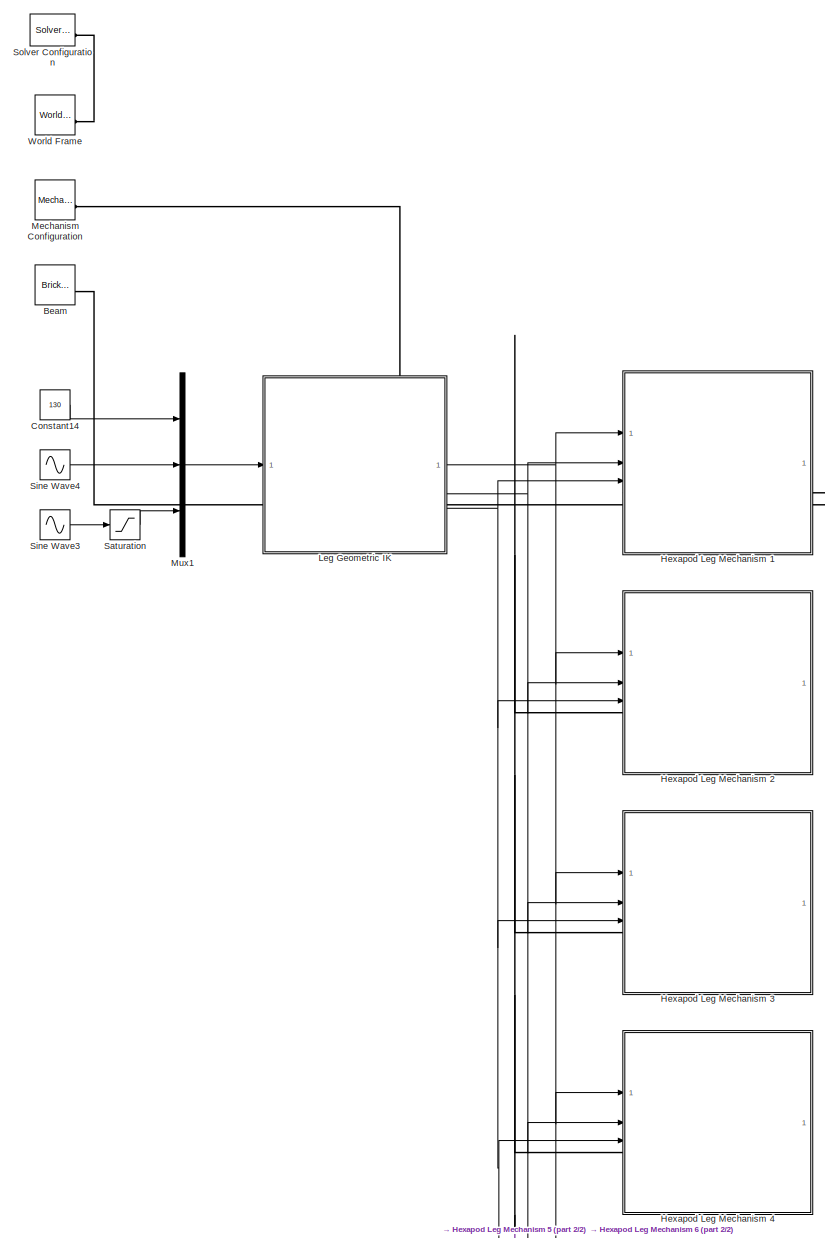
[diagram: root canvas - part 1/2, full width, middle band]
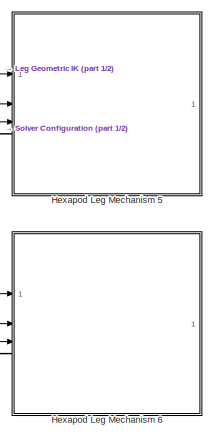
[diagram: root canvas - part 2/2, bottom right region]
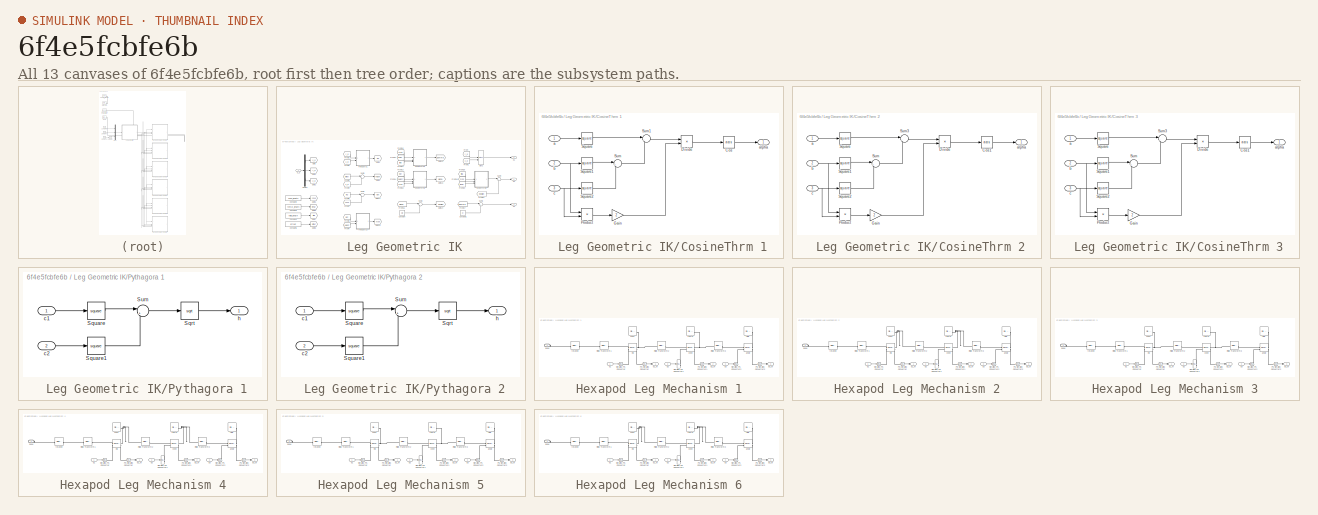
[diagram: thumbnail index - all 13 canvases of the model, root first then tree order]
MODEL slx_6f4e5fcbfe6b
KIND model
CONFIG AbsTol = auto
CONFIG EnableMultiTasking = off
CONFIG FixedStep = auto
CONFIG MaxStep = auto
CONFIG MinStep = auto
CONFIG RelTol = 1e-3
CONFIG SampleTimeConstraint = Unconstrained
CONFIG SolverName = ode23t
CONFIG StartTime = 0.0
CONFIG StopTime = 10.0
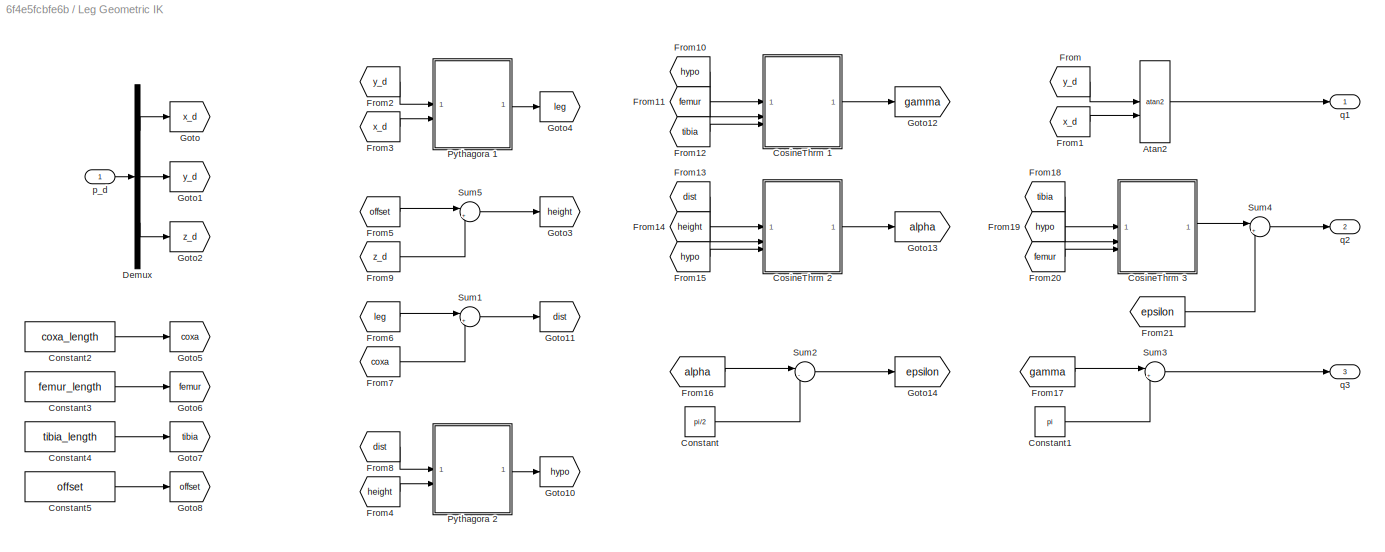
BLOCK [SubSystem]  Leg Geometric IK
BLOCK [Trigonometry]  Leg Geometric IK/Atan2
  Operator = atan2
BLOCK [Constant]  Leg Geometric IK/Constant
  Value = pi/2
BLOCK [Constant]  Leg Geometric IK/Constant1
  Value = pi
BLOCK [Constant]  Leg Geometric IK/Constant2
  Value = coxa_length
BLOCK [Constant]  Leg Geometric IK/Constant3
  Value = femur_length
BLOCK [Constant]  Leg Geometric IK/Constant4
  Value = tibia_length
BLOCK [Constant]  Leg Geometric IK/Constant5
  Value = offset
BLOCK [SubSystem]  Leg Geometric IK/CosineThrm 1
BLOCK [Trigonometry]  Leg Geometric IK/CosineThrm 1/Cos
  Operator = acos
BLOCK [Product]  Leg Geometric IK/CosineThrm 1/Divide
  Inputs = */
BLOCK [Gain]  Leg Geometric IK/CosineThrm 1/Gain
  Gain = 2
BLOCK [Product]  Leg Geometric IK/CosineThrm 1/Product
BLOCK [Math]  Leg Geometric IK/CosineThrm 1/Square
  Operator = square
BLOCK [Math]  Leg Geometric IK/CosineThrm 1/Square1
  Operator = square
BLOCK [Math]  Leg Geometric IK/CosineThrm 1/Square2
  Operator = square
BLOCK [Sum]  Leg Geometric IK/CosineThrm 1/Sum
  Inputs = |++
BLOCK [Sum]  Leg Geometric IK/CosineThrm 1/Sum1
  Inputs = |-+
BLOCK [Inport]  Leg Geometric IK/CosineThrm 1/a
  NameLocation = left
BLOCK [Outport]  Leg Geometric IK/CosineThrm 1/alpha
  NameLocation = right
BLOCK [Inport]  Leg Geometric IK/CosineThrm 1/b
  NameLocation = left
  Port = 2
BLOCK [Inport]  Leg Geometric IK/CosineThrm 1/c
  NameLocation = left
  Port = 3
BLOCK [SubSystem]  Leg Geometric IK/CosineThrm 2
BLOCK [Trigonometry]  Leg Geometric IK/CosineThrm 2/Cos1
  Operator = acos
BLOCK [Product]  Leg Geometric IK/CosineThrm 2/Divide
  Inputs = */
BLOCK [Gain]  Leg Geometric IK/CosineThrm 2/Gain
  Gain = 2
BLOCK [Product]  Leg Geometric IK/CosineThrm 2/Product
BLOCK [Math]  Leg Geometric IK/CosineThrm 2/Square
  Operator = square
BLOCK [Math]  Leg Geometric IK/CosineThrm 2/Square1
  Operator = square
BLOCK [Math]  Leg Geometric IK/CosineThrm 2/Square2
  Operator = square
BLOCK [Sum]  Leg Geometric IK/CosineThrm 2/Sum
  Inputs = |++
BLOCK [Sum]  Leg Geometric IK/CosineThrm 2/Sum3
  Inputs = |-+
BLOCK [Inport]  Leg Geometric IK/CosineThrm 2/a
  NameLocation = left
BLOCK [Outport]  Leg Geometric IK/CosineThrm 2/alpha
  NameLocation = right
BLOCK [Inport]  Leg Geometric IK/CosineThrm 2/b
  NameLocation = left
  Port = 2
BLOCK [Inport]  Leg Geometric IK/CosineThrm 2/c
  NameLocation = left
  Port = 3
BLOCK [SubSystem]  Leg Geometric IK/CosineThrm 3
BLOCK [Trigonometry]  Leg Geometric IK/CosineThrm 3/Cos1
  Operator = acos
BLOCK [Product]  Leg Geometric IK/CosineThrm 3/Divide
  Inputs = */
BLOCK [Gain]  Leg Geometric IK/CosineThrm 3/Gain
  Gain = 2
BLOCK [Product]  Leg Geometric IK/CosineThrm 3/Product
BLOCK [Math]  Leg Geometric IK/CosineThrm 3/Square
  Operator = square
BLOCK [Math]  Leg Geometric IK/CosineThrm 3/Square1
  Operator = square
BLOCK [Math]  Leg Geometric IK/CosineThrm 3/Square2
  Operator = square
BLOCK [Sum]  Leg Geometric IK/CosineThrm 3/Sum
  Inputs = |++
BLOCK [Sum]  Leg Geometric IK/CosineThrm 3/Sum3
  Inputs = |-+
BLOCK [Inport]  Leg Geometric IK/CosineThrm 3/a
  NameLocation = left
BLOCK [Outport]  Leg Geometric IK/CosineThrm 3/alpha
  NameLocation = right
BLOCK [Inport]  Leg Geometric IK/CosineThrm 3/b
  NameLocation = left
  Port = 2
BLOCK [Inport]  Leg Geometric IK/CosineThrm 3/c
  NameLocation = left
  Port = 3
BLOCK [Demux]  Leg Geometric IK/Demux
  Outputs = 3
BLOCK [From]  Leg Geometric IK/From
  GotoTag = y_d
BLOCK [From]  Leg Geometric IK/From1
  GotoTag = x_d
BLOCK [From]  Leg Geometric IK/From10
  GotoTag = hypo
BLOCK [From]  Leg Geometric IK/From11
  GotoTag = femur
BLOCK [From]  Leg Geometric IK/From12
  GotoTag = tibia
BLOCK [From]  Leg Geometric IK/From13
  GotoTag = dist
BLOCK [From]  Leg Geometric IK/From14
  GotoTag = height
BLOCK [From]  Leg Geometric IK/From15
  GotoTag = hypo
BLOCK [From]  Leg Geometric IK/From16
  GotoTag = alpha
BLOCK [From]  Leg Geometric IK/From17
  GotoTag = gamma
BLOCK [From]  Leg Geometric IK/From18
  GotoTag = tibia
BLOCK [From]  Leg Geometric IK/From19
  GotoTag = hypo
BLOCK [From]  Leg Geometric IK/From2
  GotoTag = y_d
BLOCK [From]  Leg Geometric IK/From20
  GotoTag = femur
BLOCK [From]  Leg Geometric IK/From21
  GotoTag = epsilon
BLOCK [From]  Leg Geometric IK/From3
  GotoTag = x_d
BLOCK [From]  Leg Geometric IK/From4
  GotoTag = height
BLOCK [From]  Leg Geometric IK/From5
  GotoTag = offset
BLOCK [From]  Leg Geometric IK/From6
  GotoTag = leg
BLOCK [From]  Leg Geometric IK/From7
  GotoTag = coxa
BLOCK [From]  Leg Geometric IK/From8
  GotoTag = dist
BLOCK [From]  Leg Geometric IK/From9
  GotoTag = z_d
BLOCK [Goto]  Leg Geometric IK/Goto
  GotoTag = x_d
BLOCK [Goto]  Leg Geometric IK/Goto1
  GotoTag = y_d
BLOCK [Goto]  Leg Geometric IK/Goto10
  GotoTag = hypo
BLOCK [Goto]  Leg Geometric IK/Goto11
  GotoTag = dist
BLOCK [Goto]  Leg Geometric IK/Goto12
  GotoTag = gamma
BLOCK [Goto]  Leg Geometric IK/Goto13
  GotoTag = alpha
BLOCK [Goto]  Leg Geometric IK/Goto14
  GotoTag = epsilon
BLOCK [Goto]  Leg Geometric IK/Goto2
  GotoTag = z_d
BLOCK [Goto]  Leg Geometric IK/Goto3
  GotoTag = height
BLOCK [Goto]  Leg Geometric IK/Goto4
  GotoTag = leg
BLOCK [Goto]  Leg Geometric IK/Goto5
  GotoTag = coxa
BLOCK [Goto]  Leg Geometric IK/Goto6
  GotoTag = femur
BLOCK [Goto]  Leg Geometric IK/Goto7
  GotoTag = tibia
BLOCK [Goto]  Leg Geometric IK/Goto8
  GotoTag = offset
BLOCK [SubSystem]  Leg Geometric IK/Pythagora 1
BLOCK [Sqrt]  Leg Geometric IK/Pythagora 1/Sqrt
BLOCK [Math]  Leg Geometric IK/Pythagora 1/Square
  Operator = square
BLOCK [Math]  Leg Geometric IK/Pythagora 1/Square1
  Operator = square
BLOCK [Sum]  Leg Geometric IK/Pythagora 1/Sum
  Inputs = |++
BLOCK [Inport]  Leg Geometric IK/Pythagora 1/c1
  NameLocation = left
BLOCK [Inport]  Leg Geometric IK/Pythagora 1/c2
  NameLocation = left
  Port = 2
BLOCK [Outport]  Leg Geometric IK/Pythagora 1/h
  NameLocation = right
BLOCK [SubSystem]  Leg Geometric IK/Pythagora 2
BLOCK [Sqrt]  Leg Geometric IK/Pythagora 2/Sqrt
BLOCK [Math]  Leg Geometric IK/Pythagora 2/Square
  Operator = square
BLOCK [Math]  Leg Geometric IK/Pythagora 2/Square1
  Operator = square
BLOCK [Sum]  Leg Geometric IK/Pythagora 2/Sum
  Inputs = |++
BLOCK [Inport]  Leg Geometric IK/Pythagora 2/c1
  NameLocation = left
BLOCK [Inport]  Leg Geometric IK/Pythagora 2/c2
  NameLocation = left
  Port = 2
BLOCK [Outport]  Leg Geometric IK/Pythagora 2/h
  NameLocation = right
BLOCK [Sum]  Leg Geometric IK/Sum1
  Inputs = |+-
BLOCK [Sum]  Leg Geometric IK/Sum2
  Inputs = |-+
BLOCK [Sum]  Leg Geometric IK/Sum3
  Inputs = |+-
BLOCK [Sum]  Leg Geometric IK/Sum4
  Inputs = |+-
BLOCK [Sum]  Leg Geometric IK/Sum5
  Inputs = |+-
BLOCK [Inport]  Leg Geometric IK/p_d
  NameLocation = left
BLOCK [Outport]  Leg Geometric IK/q1
  NameLocation = right
BLOCK [Outport]  Leg Geometric IK/q2
  NameLocation = right
  Port = 2
BLOCK [Outport]  Leg Geometric IK/q3
  NameLocation = right
  Port = 3
BLOCK [Reference] Beam  REF=sm_lib/Body Elements/Brick Solid
  NameLocation = top
  SourceBlock = sm_lib/Body Elements/Brick Solid
  SourceType = Brick Solid
BLOCK [Constant] Constant14
  Value = 130
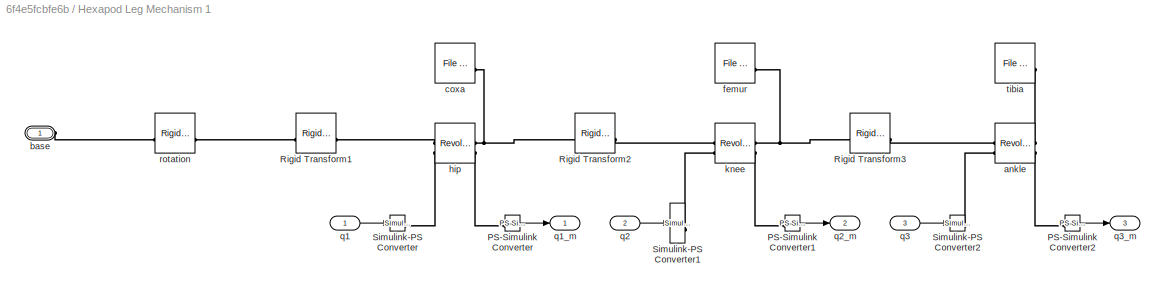
BLOCK [SubSystem] Hexapod Leg Mechanism 1
  PortSchema = {"entries":[{"content":{"sides":[{"content":{"connectorIds":["In1","In2","In3"]},"type":"ConnectorPlacement.EquallySpacedRectSide","uuid":"bc17d883-2b58-45a2-a1f1-7f74565bb8d6"},{"content":{"connectorIds":["Out1","Out2","Out3"],"side":"RIGHT"},"type":"ConnectorPlacement.EquallySpacedRectSide","uuid":"1ff441ba-9642-4046-9acb-54501b207a86"},{"content":{"connectorIds":["LConn1"],"side":"TOP"},"type":...<+274ch>  <repeated x6 — deduplicated; at blocks: Hexapod Leg Mechanism 1, Hexapod Leg Mechanism 2, Hexapod Leg Mechanism 3, Hexapod Leg Mechanism 4, Hexapod Leg Mechanism 5, Hexapod Leg Mechanism 6>
BLOCK [Reference] Hexapod Leg Mechanism 1/PS-Simulink Converter  REF=nesl_utility/PS-Simulink
Converter
  SourceBlock = nesl_utility/PS-Simulink\nConverter
  SourceType = PS-Simulink\nConverter
BLOCK [Reference] Hexapod Leg Mechanism 1/PS-Simulink Converter1  REF=nesl_utility/PS-Simulink
Converter
  SourceBlock = nesl_utility/PS-Simulink\nConverter
  SourceType = PS-Simulink\nConverter
BLOCK [Reference] Hexapod Leg Mechanism 1/PS-Simulink Converter2  REF=nesl_utility/PS-Simulink
Converter
  SourceBlock = nesl_utility/PS-Simulink\nConverter
  SourceType = PS-Simulink\nConverter
BLOCK [Reference] Hexapod Leg Mechanism 1/Rigid Transform1  REF=sm_lib/Frames and
Transforms/Rigid
Transform
  SourceBlock = sm_lib/Frames and\nTransforms/Rigid\nTransform
  SourceType = Rigid\nTransform
BLOCK [Reference] Hexapod Leg Mechanism 1/Rigid Transform2  REF=sm_lib/Frames and
Transforms/Rigid
Transform
  SourceBlock = sm_lib/Frames and\nTransforms/Rigid\nTransform
  SourceType = Rigid\nTransform
BLOCK [Reference] Hexapod Leg Mechanism 1/Rigid Transform3  REF=sm_lib/Frames and
Transforms/Rigid
Transform
  SourceBlock = sm_lib/Frames and\nTransforms/Rigid\nTransform
  SourceType = Rigid\nTransform
BLOCK [Reference] Hexapod Leg Mechanism 1/Simulink-PS Converter  REF=nesl_utility/Simulink-PS
Converter
  SourceBlock = nesl_utility/Simulink-PS\nConverter
  SourceType = Simulink-PS\nConverter
BLOCK [Reference] Hexapod Leg Mechanism 1/Simulink-PS Converter1  REF=nesl_utility/Simulink-PS
Converter
  SourceBlock = nesl_utility/Simulink-PS\nConverter
  SourceType = Simulink-PS\nConverter
BLOCK [Reference] Hexapod Leg Mechanism 1/Simulink-PS Converter2  REF=nesl_utility/Simulink-PS
Converter
  SourceBlock = nesl_utility/Simulink-PS\nConverter
  SourceType = Simulink-PS\nConverter
BLOCK [Reference] Hexapod Leg Mechanism 1/ankle  REF=sm_lib/Joints/Revolute Joint
  SourceBlock = sm_lib/Joints/Revolute Joint
  SourceType = Revolute Joint
BLOCK [PMIOPort] Hexapod Leg Mechanism 1/base
  NameLocation = left
  Side = Left
BLOCK [Reference] Hexapod Leg Mechanism 1/coxa  REF=sm_lib/Body Elements/File Solid
  NameLocation = top
  SourceBlock = sm_lib/Body Elements/File Solid
  SourceType = File Solid
BLOCK [Reference] Hexapod Leg Mechanism 1/femur  REF=sm_lib/Body Elements/File Solid
  NameLocation = top
  SourceBlock = sm_lib/Body Elements/File Solid
  SourceType = File Solid
BLOCK [Reference] Hexapod Leg Mechanism 1/hip  REF=sm_lib/Joints/Revolute Joint
  SourceBlock = sm_lib/Joints/Revolute Joint
  SourceType = Revolute Joint
BLOCK [Reference] Hexapod Leg Mechanism 1/knee  REF=sm_lib/Joints/Revolute Joint
  SourceBlock = sm_lib/Joints/Revolute Joint
  SourceType = Revolute Joint
BLOCK [Inport] Hexapod Leg Mechanism 1/q1
BLOCK [Outport] Hexapod Leg Mechanism 1/q1_m
BLOCK [Inport] Hexapod Leg Mechanism 1/q2
  Port = 2
BLOCK [Outport] Hexapod Leg Mechanism 1/q2_m
  Port = 2
BLOCK [Inport] Hexapod Leg Mechanism 1/q3
  Port = 3
BLOCK [Outport] Hexapod Leg Mechanism 1/q3_m
  Port = 3
BLOCK [Reference] Hexapod Leg Mechanism 1/rotation  REF=sm_lib/Frames and
Transforms/Rigid
Transform
  SourceBlock = sm_lib/Frames and\nTransforms/Rigid\nTransform
  SourceType = Rigid\nTransform
BLOCK [Reference] Hexapod Leg Mechanism 1/tibia  REF=sm_lib/Body Elements/File Solid
  NameLocation = top
  SourceBlock = sm_lib/Body Elements/File Solid
  SourceType = File Solid
BLOCK [SubSystem] Hexapod Leg Mechanism 2
BLOCK [Reference] Hexapod Leg Mechanism 2/PS-Simulink Converter  REF=nesl_utility/PS-Simulink
Converter
  SourceBlock = nesl_utility/PS-Simulink\nConverter
  SourceType = PS-Simulink\nConverter
BLOCK [Reference] Hexapod Leg Mechanism 2/PS-Simulink Converter1  REF=nesl_utility/PS-Simulink
Converter
  SourceBlock = nesl_utility/PS-Simulink\nConverter
  SourceType = PS-Simulink\nConverter
BLOCK [Reference] Hexapod Leg Mechanism 2/PS-Simulink Converter2  REF=nesl_utility/PS-Simulink
Converter
  SourceBlock = nesl_utility/PS-Simulink\nConverter
  SourceType = PS-Simulink\nConverter
BLOCK [Reference] Hexapod Leg Mechanism 2/Rigid Transform1  REF=sm_lib/Frames and
Transforms/Rigid
Transform
  SourceBlock = sm_lib/Frames and\nTransforms/Rigid\nTransform
  SourceType = Rigid\nTransform
BLOCK [Reference] Hexapod Leg Mechanism 2/Rigid Transform2  REF=sm_lib/Frames and
Transforms/Rigid
Transform
  SourceBlock = sm_lib/Frames and\nTransforms/Rigid\nTransform
  SourceType = Rigid\nTransform
BLOCK [Reference] Hexapod Leg Mechanism 2/Rigid Transform3  REF=sm_lib/Frames and
Transforms/Rigid
Transform
  SourceBlock = sm_lib/Frames and\nTransforms/Rigid\nTransform
  SourceType = Rigid\nTransform
BLOCK [Reference] Hexapod Leg Mechanism 2/Simulink-PS Converter  REF=nesl_utility/Simulink-PS
Converter
  SourceBlock = nesl_utility/Simulink-PS\nConverter
  SourceType = Simulink-PS\nConverter
BLOCK [Reference] Hexapod Leg Mechanism 2/Simulink-PS Converter1  REF=nesl_utility/Simulink-PS
Converter
  SourceBlock = nesl_utility/Simulink-PS\nConverter
  SourceType = Simulink-PS\nConverter
BLOCK [Reference] Hexapod Leg Mechanism 2/Simulink-PS Converter2  REF=nesl_utility/Simulink-PS
Converter
  SourceBlock = nesl_utility/Simulink-PS\nConverter
  SourceType = Simulink-PS\nConverter
BLOCK [Reference] Hexapod Leg Mechanism 2/ankle  REF=sm_lib/Joints/Revolute Joint
  SourceBlock = sm_lib/Joints/Revolute Joint
  SourceType = Revolute Joint
BLOCK [PMIOPort] Hexapod Leg Mechanism 2/base
  NameLocation = left
  Side = Left
BLOCK [Reference] Hexapod Leg Mechanism 2/coxa  REF=sm_lib/Body Elements/File Solid
  NameLocation = top
  SourceBlock = sm_lib/Body Elements/File Solid
  SourceType = File Solid
BLOCK [Reference] Hexapod Leg Mechanism 2/femur  REF=sm_lib/Body Elements/File Solid
  NameLocation = top
  SourceBlock = sm_lib/Body Elements/File Solid
  SourceType = File Solid
BLOCK [Reference] Hexapod Leg Mechanism 2/hip  REF=sm_lib/Joints/Revolute Joint
  SourceBlock = sm_lib/Joints/Revolute Joint
  SourceType = Revolute Joint
BLOCK [Reference] Hexapod Leg Mechanism 2/knee  REF=sm_lib/Joints/Revolute Joint
  SourceBlock = sm_lib/Joints/Revolute Joint
  SourceType = Revolute Joint
BLOCK [Inport] Hexapod Leg Mechanism 2/q1
BLOCK [Outport] Hexapod Leg Mechanism 2/q1_m
BLOCK [Inport] Hexapod Leg Mechanism 2/q2
  Port = 2
BLOCK [Outport] Hexapod Leg Mechanism 2/q2_m
  Port = 2
BLOCK [Inport] Hexapod Leg Mechanism 2/q3
  Port = 3
BLOCK [Outport] Hexapod Leg Mechanism 2/q3_m
  Port = 3
BLOCK [Reference] Hexapod Leg Mechanism 2/rotation  REF=sm_lib/Frames and
Transforms/Rigid
Transform
  SourceBlock = sm_lib/Frames and\nTransforms/Rigid\nTransform
  SourceType = Rigid\nTransform
BLOCK [Reference] Hexapod Leg Mechanism 2/tibia  REF=sm_lib/Body Elements/File Solid
  NameLocation = top
  SourceBlock = sm_lib/Body Elements/File Solid
  SourceType = File Solid
BLOCK [SubSystem] Hexapod Leg Mechanism 3
BLOCK [Reference] Hexapod Leg Mechanism 3/PS-Simulink Converter  REF=nesl_utility/PS-Simulink
Converter
  SourceBlock = nesl_utility/PS-Simulink\nConverter
  SourceType = PS-Simulink\nConverter
BLOCK [Reference] Hexapod Leg Mechanism 3/PS-Simulink Converter1  REF=nesl_utility/PS-Simulink
Converter
  SourceBlock = nesl_utility/PS-Simulink\nConverter
  SourceType = PS-Simulink\nConverter
BLOCK [Reference] Hexapod Leg Mechanism 3/PS-Simulink Converter2  REF=nesl_utility/PS-Simulink
Converter
  SourceBlock = nesl_utility/PS-Simulink\nConverter
  SourceType = PS-Simulink\nConverter
BLOCK [Reference] Hexapod Leg Mechanism 3/Rigid Transform1  REF=sm_lib/Frames and
Transforms/Rigid
Transform
  SourceBlock = sm_lib/Frames and\nTransforms/Rigid\nTransform
  SourceType = Rigid\nTransform
BLOCK [Reference] Hexapod Leg Mechanism 3/Rigid Transform2  REF=sm_lib/Frames and
Transforms/Rigid
Transform
  SourceBlock = sm_lib/Frames and\nTransforms/Rigid\nTransform
  SourceType = Rigid\nTransform
BLOCK [Reference] Hexapod Leg Mechanism 3/Rigid Transform3  REF=sm_lib/Frames and
Transforms/Rigid
Transform
  SourceBlock = sm_lib/Frames and\nTransforms/Rigid\nTransform
  SourceType = Rigid\nTransform
BLOCK [Reference] Hexapod Leg Mechanism 3/Simulink-PS Converter  REF=nesl_utility/Simulink-PS
Converter
  SourceBlock = nesl_utility/Simulink-PS\nConverter
  SourceType = Simulink-PS\nConverter
BLOCK [Reference] Hexapod Leg Mechanism 3/Simulink-PS Converter1  REF=nesl_utility/Simulink-PS
Converter
  SourceBlock = nesl_utility/Simulink-PS\nConverter
  SourceType = Simulink-PS\nConverter
BLOCK [Reference] Hexapod Leg Mechanism 3/Simulink-PS Converter2  REF=nesl_utility/Simulink-PS
Converter
  SourceBlock = nesl_utility/Simulink-PS\nConverter
  SourceType = Simulink-PS\nConverter
BLOCK [Reference] Hexapod Leg Mechanism 3/ankle  REF=sm_lib/Joints/Revolute Joint
  SourceBlock = sm_lib/Joints/Revolute Joint
  SourceType = Revolute Joint
BLOCK [PMIOPort] Hexapod Leg Mechanism 3/base
  NameLocation = left
  Side = Left
BLOCK [Reference] Hexapod Leg Mechanism 3/coxa  REF=sm_lib/Body Elements/File Solid
  NameLocation = top
  SourceBlock = sm_lib/Body Elements/File Solid
  SourceType = File Solid
BLOCK [Reference] Hexapod Leg Mechanism 3/femur  REF=sm_lib/Body Elements/File Solid
  NameLocation = top
  SourceBlock = sm_lib/Body Elements/File Solid
  SourceType = File Solid
BLOCK [Reference] Hexapod Leg Mechanism 3/hip  REF=sm_lib/Joints/Revolute Joint
  SourceBlock = sm_lib/Joints/Revolute Joint
  SourceType = Revolute Joint
BLOCK [Reference] Hexapod Leg Mechanism 3/knee  REF=sm_lib/Joints/Revolute Joint
  SourceBlock = sm_lib/Joints/Revolute Joint
  SourceType = Revolute Joint
BLOCK [Inport] Hexapod Leg Mechanism 3/q1
BLOCK [Outport] Hexapod Leg Mechanism 3/q1_m
BLOCK [Inport] Hexapod Leg Mechanism 3/q2
  Port = 2
BLOCK [Outport] Hexapod Leg Mechanism 3/q2_m
  Port = 2
BLOCK [Inport] Hexapod Leg Mechanism 3/q3
  Port = 3
BLOCK [Outport] Hexapod Leg Mechanism 3/q3_m
  Port = 3
BLOCK [Reference] Hexapod Leg Mechanism 3/rotation  REF=sm_lib/Frames and
Transforms/Rigid
Transform
  SourceBlock = sm_lib/Frames and\nTransforms/Rigid\nTransform
  SourceType = Rigid\nTransform
BLOCK [Reference] Hexapod Leg Mechanism 3/tibia  REF=sm_lib/Body Elements/File Solid
  NameLocation = top
  SourceBlock = sm_lib/Body Elements/File Solid
  SourceType = File Solid
BLOCK [SubSystem] Hexapod Leg Mechanism 4
BLOCK [Reference] Hexapod Leg Mechanism 4/PS-Simulink Converter  REF=nesl_utility/PS-Simulink
Converter
  SourceBlock = nesl_utility/PS-Simulink\nConverter
  SourceType = PS-Simulink\nConverter
BLOCK [Reference] Hexapod Leg Mechanism 4/PS-Simulink Converter1  REF=nesl_utility/PS-Simulink
Converter
  SourceBlock = nesl_utility/PS-Simulink\nConverter
  SourceType = PS-Simulink\nConverter
BLOCK [Reference] Hexapod Leg Mechanism 4/PS-Simulink Converter2  REF=nesl_utility/PS-Simulink
Converter
  SourceBlock = nesl_utility/PS-Simulink\nConverter
  SourceType = PS-Simulink\nConverter
BLOCK [Reference] Hexapod Leg Mechanism 4/Rigid Transform1  REF=sm_lib/Frames and
Transforms/Rigid
Transform
  SourceBlock = sm_lib/Frames and\nTransforms/Rigid\nTransform
  SourceType = Rigid\nTransform
BLOCK [Reference] Hexapod Leg Mechanism 4/Rigid Transform2  REF=sm_lib/Frames and
Transforms/Rigid
Transform
  SourceBlock = sm_lib/Frames and\nTransforms/Rigid\nTransform
  SourceType = Rigid\nTransform
BLOCK [Reference] Hexapod Leg Mechanism 4/Rigid Transform3  REF=sm_lib/Frames and
Transforms/Rigid
Transform
  SourceBlock = sm_lib/Frames and\nTransforms/Rigid\nTransform
  SourceType = Rigid\nTransform
BLOCK [Reference] Hexapod Leg Mechanism 4/Simulink-PS Converter  REF=nesl_utility/Simulink-PS
Converter
  SourceBlock = nesl_utility/Simulink-PS\nConverter
  SourceType = Simulink-PS\nConverter
BLOCK [Reference] Hexapod Leg Mechanism 4/Simulink-PS Converter1  REF=nesl_utility/Simulink-PS
Converter
  SourceBlock = nesl_utility/Simulink-PS\nConverter
  SourceType = Simulink-PS\nConverter
BLOCK [Reference] Hexapod Leg Mechanism 4/Simulink-PS Converter2  REF=nesl_utility/Simulink-PS
Converter
  SourceBlock = nesl_utility/Simulink-PS\nConverter
  SourceType = Simulink-PS\nConverter
BLOCK [Reference] Hexapod Leg Mechanism 4/ankle  REF=sm_lib/Joints/Revolute Joint
  SourceBlock = sm_lib/Joints/Revolute Joint
  SourceType = Revolute Joint
BLOCK [PMIOPort] Hexapod Leg Mechanism 4/base
  NameLocation = left
  Side = Left
BLOCK [Reference] Hexapod Leg Mechanism 4/coxa  REF=sm_lib/Body Elements/File Solid
  NameLocation = top
  SourceBlock = sm_lib/Body Elements/File Solid
  SourceType = File Solid
BLOCK [Reference] Hexapod Leg Mechanism 4/femur  REF=sm_lib/Body Elements/File Solid
  NameLocation = top
  SourceBlock = sm_lib/Body Elements/File Solid
  SourceType = File Solid
BLOCK [Reference] Hexapod Leg Mechanism 4/hip  REF=sm_lib/Joints/Revolute Joint
  SourceBlock = sm_lib/Joints/Revolute Joint
  SourceType = Revolute Joint
BLOCK [Reference] Hexapod Leg Mechanism 4/knee  REF=sm_lib/Joints/Revolute Joint
  SourceBlock = sm_lib/Joints/Revolute Joint
  SourceType = Revolute Joint
BLOCK [Inport] Hexapod Leg Mechanism 4/q1
BLOCK [Outport] Hexapod Leg Mechanism 4/q1_m
BLOCK [Inport] Hexapod Leg Mechanism 4/q2
  Port = 2
BLOCK [Outport] Hexapod Leg Mechanism 4/q2_m
  Port = 2
BLOCK [Inport] Hexapod Leg Mechanism 4/q3
  Port = 3
BLOCK [Outport] Hexapod Leg Mechanism 4/q3_m
  Port = 3
BLOCK [Reference] Hexapod Leg Mechanism 4/rotation  REF=sm_lib/Frames and
Transforms/Rigid
Transform
  SourceBlock = sm_lib/Frames and\nTransforms/Rigid\nTransform
  SourceType = Rigid\nTransform
BLOCK [Reference] Hexapod Leg Mechanism 4/tibia  REF=sm_lib/Body Elements/File Solid
  NameLocation = top
  SourceBlock = sm_lib/Body Elements/File Solid
  SourceType = File Solid
BLOCK [SubSystem] Hexapod Leg Mechanism 5
BLOCK [Reference] Hexapod Leg Mechanism 5/PS-Simulink Converter  REF=nesl_utility/PS-Simulink
Converter
  SourceBlock = nesl_utility/PS-Simulink\nConverter
  SourceType = PS-Simulink\nConverter
BLOCK [Reference] Hexapod Leg Mechanism 5/PS-Simulink Converter1  REF=nesl_utility/PS-Simulink
Converter
  SourceBlock = nesl_utility/PS-Simulink\nConverter
  SourceType = PS-Simulink\nConverter
BLOCK [Reference] Hexapod Leg Mechanism 5/PS-Simulink Converter2  REF=nesl_utility/PS-Simulink
Converter
  SourceBlock = nesl_utility/PS-Simulink\nConverter
  SourceType = PS-Simulink\nConverter
BLOCK [Reference] Hexapod Leg Mechanism 5/Rigid Transform1  REF=sm_lib/Frames and
Transforms/Rigid
Transform
  SourceBlock = sm_lib/Frames and\nTransforms/Rigid\nTransform
  SourceType = Rigid\nTransform
BLOCK [Reference] Hexapod Leg Mechanism 5/Rigid Transform2  REF=sm_lib/Frames and
Transforms/Rigid
Transform
  SourceBlock = sm_lib/Frames and\nTransforms/Rigid\nTransform
  SourceType = Rigid\nTransform
BLOCK [Reference] Hexapod Leg Mechanism 5/Rigid Transform3  REF=sm_lib/Frames and
Transforms/Rigid
Transform
  SourceBlock = sm_lib/Frames and\nTransforms/Rigid\nTransform
  SourceType = Rigid\nTransform
BLOCK [Reference] Hexapod Leg Mechanism 5/Simulink-PS Converter  REF=nesl_utility/Simulink-PS
Converter
  SourceBlock = nesl_utility/Simulink-PS\nConverter
  SourceType = Simulink-PS\nConverter
BLOCK [Reference] Hexapod Leg Mechanism 5/Simulink-PS Converter1  REF=nesl_utility/Simulink-PS
Converter
  SourceBlock = nesl_utility/Simulink-PS\nConverter
  SourceType = Simulink-PS\nConverter
BLOCK [Reference] Hexapod Leg Mechanism 5/Simulink-PS Converter2  REF=nesl_utility/Simulink-PS
Converter
  SourceBlock = nesl_utility/Simulink-PS\nConverter
  SourceType = Simulink-PS\nConverter
BLOCK [Reference] Hexapod Leg Mechanism 5/ankle  REF=sm_lib/Joints/Revolute Joint
  SourceBlock = sm_lib/Joints/Revolute Joint
  SourceType = Revolute Joint
BLOCK [PMIOPort] Hexapod Leg Mechanism 5/base
  NameLocation = left
  Side = Left
BLOCK [Reference] Hexapod Leg Mechanism 5/coxa  REF=sm_lib/Body Elements/File Solid
  NameLocation = top
  SourceBlock = sm_lib/Body Elements/File Solid
  SourceType = File Solid
BLOCK [Reference] Hexapod Leg Mechanism 5/femur  REF=sm_lib/Body Elements/File Solid
  NameLocation = top
  SourceBlock = sm_lib/Body Elements/File Solid
  SourceType = File Solid
BLOCK [Reference] Hexapod Leg Mechanism 5/hip  REF=sm_lib/Joints/Revolute Joint
  SourceBlock = sm_lib/Joints/Revolute Joint
  SourceType = Revolute Joint
BLOCK [Reference] Hexapod Leg Mechanism 5/knee  REF=sm_lib/Joints/Revolute Joint
  SourceBlock = sm_lib/Joints/Revolute Joint
  SourceType = Revolute Joint
BLOCK [Inport] Hexapod Leg Mechanism 5/q1
BLOCK [Outport] Hexapod Leg Mechanism 5/q1_m
BLOCK [Inport] Hexapod Leg Mechanism 5/q2
  Port = 2
BLOCK [Outport] Hexapod Leg Mechanism 5/q2_m
  Port = 2
BLOCK [Inport] Hexapod Leg Mechanism 5/q3
  Port = 3
BLOCK [Outport] Hexapod Leg Mechanism 5/q3_m
  Port = 3
BLOCK [Reference] Hexapod Leg Mechanism 5/rotation  REF=sm_lib/Frames and
Transforms/Rigid
Transform
  SourceBlock = sm_lib/Frames and\nTransforms/Rigid\nTransform
  SourceType = Rigid\nTransform
BLOCK [Reference] Hexapod Leg Mechanism 5/tibia  REF=sm_lib/Body Elements/File Solid
  NameLocation = top
  SourceBlock = sm_lib/Body Elements/File Solid
  SourceType = File Solid
BLOCK [SubSystem] Hexapod Leg Mechanism 6
BLOCK [Reference] Hexapod Leg Mechanism 6/PS-Simulink Converter  REF=nesl_utility/PS-Simulink
Converter
  SourceBlock = nesl_utility/PS-Simulink\nConverter
  SourceType = PS-Simulink\nConverter
BLOCK [Reference] Hexapod Leg Mechanism 6/PS-Simulink Converter1  REF=nesl_utility/PS-Simulink
Converter
  SourceBlock = nesl_utility/PS-Simulink\nConverter
  SourceType = PS-Simulink\nConverter
BLOCK [Reference] Hexapod Leg Mechanism 6/PS-Simulink Converter2  REF=nesl_utility/PS-Simulink
Converter
  SourceBlock = nesl_utility/PS-Simulink\nConverter
  SourceType = PS-Simulink\nConverter
BLOCK [Reference] Hexapod Leg Mechanism 6/Rigid Transform1  REF=sm_lib/Frames and
Transforms/Rigid
Transform
  SourceBlock = sm_lib/Frames and\nTransforms/Rigid\nTransform
  SourceType = Rigid\nTransform
BLOCK [Reference] Hexapod Leg Mechanism 6/Rigid Transform2  REF=sm_lib/Frames and
Transforms/Rigid
Transform
  SourceBlock = sm_lib/Frames and\nTransforms/Rigid\nTransform
  SourceType = Rigid\nTransform
BLOCK [Reference] Hexapod Leg Mechanism 6/Rigid Transform3  REF=sm_lib/Frames and
Transforms/Rigid
Transform
  SourceBlock = sm_lib/Frames and\nTransforms/Rigid\nTransform
  SourceType = Rigid\nTransform
BLOCK [Reference] Hexapod Leg Mechanism 6/Simulink-PS Converter  REF=nesl_utility/Simulink-PS
Converter
  SourceBlock = nesl_utility/Simulink-PS\nConverter
  SourceType = Simulink-PS\nConverter
BLOCK [Reference] Hexapod Leg Mechanism 6/Simulink-PS Converter1  REF=nesl_utility/Simulink-PS
Converter
  SourceBlock = nesl_utility/Simulink-PS\nConverter
  SourceType = Simulink-PS\nConverter
BLOCK [Reference] Hexapod Leg Mechanism 6/Simulink-PS Converter2  REF=nesl_utility/Simulink-PS
Converter
  SourceBlock = nesl_utility/Simulink-PS\nConverter
  SourceType = Simulink-PS\nConverter
BLOCK [Reference] Hexapod Leg Mechanism 6/ankle  REF=sm_lib/Joints/Revolute Joint
  SourceBlock = sm_lib/Joints/Revolute Joint
  SourceType = Revolute Joint
BLOCK [PMIOPort] Hexapod Leg Mechanism 6/base
  NameLocation = left
  Side = Left
BLOCK [Reference] Hexapod Leg Mechanism 6/coxa  REF=sm_lib/Body Elements/File Solid
  NameLocation = top
  SourceBlock = sm_lib/Body Elements/File Solid
  SourceType = File Solid
BLOCK [Reference] Hexapod Leg Mechanism 6/femur  REF=sm_lib/Body Elements/File Solid
  NameLocation = top
  SourceBlock = sm_lib/Body Elements/File Solid
  SourceType = File Solid
BLOCK [Reference] Hexapod Leg Mechanism 6/hip  REF=sm_lib/Joints/Revolute Joint
  SourceBlock = sm_lib/Joints/Revolute Joint
  SourceType = Revolute Joint
BLOCK [Reference] Hexapod Leg Mechanism 6/knee  REF=sm_lib/Joints/Revolute Joint
  SourceBlock = sm_lib/Joints/Revolute Joint
  SourceType = Revolute Joint
BLOCK [Inport] Hexapod Leg Mechanism 6/q1
BLOCK [Outport] Hexapod Leg Mechanism 6/q1_m
BLOCK [Inport] Hexapod Leg Mechanism 6/q2
  Port = 2
BLOCK [Outport] Hexapod Leg Mechanism 6/q2_m
  Port = 2
BLOCK [Inport] Hexapod Leg Mechanism 6/q3
  Port = 3
BLOCK [Outport] Hexapod Leg Mechanism 6/q3_m
  Port = 3
BLOCK [Reference] Hexapod Leg Mechanism 6/rotation  REF=sm_lib/Frames and
Transforms/Rigid
Transform
  SourceBlock = sm_lib/Frames and\nTransforms/Rigid\nTransform
  SourceType = Rigid\nTransform
BLOCK [Reference] Hexapod Leg Mechanism 6/tibia  REF=sm_lib/Body Elements/File Solid
  NameLocation = top
  SourceBlock = sm_lib/Body Elements/File Solid
  SourceType = File Solid
BLOCK [Reference] Mechanism Configuration  REF=sm_lib/Utilities/Mechanism
Configuration
  SourceBlock = sm_lib/Utilities/Mechanism\nConfiguration
  SourceType = Mechanism\nConfiguration
BLOCK [Mux] Mux1
  DisplayOption = bar
  Inputs = 3
BLOCK [Saturate] Saturation
  LowerLimit = 100
  UpperLimit = inf
BLOCK [Sin] Sine Wave3
  Amplitude = 50
  Bias = 100
  Frequency = pi
  Phase = pi/2
  SampleTime = 0
BLOCK [Sin] Sine Wave4
  Amplitude = 80
  Frequency = pi
  SampleTime = 0
BLOCK [Reference] Solver Configuration  REF=nesl_utility/Solver
Configuration
  SourceBlock = nesl_utility/Solver\nConfiguration
  SourceType = Solver\nConfiguration
BLOCK [Reference] World Frame  REF=sm_lib/Frames and
Transforms/World Frame
  SourceBlock = sm_lib/Frames and\nTransforms/World Frame
  SourceType = World Frame
LINE  Leg Geometric IK/Atan2:1 ->  Leg Geometric IK/q1:1
LINE  Leg Geometric IK/Constant1:1 ->  Leg Geometric IK/Sum3:2
LINE  Leg Geometric IK/Constant2:1 ->  Leg Geometric IK/Goto5:1
LINE  Leg Geometric IK/Constant3:1 ->  Leg Geometric IK/Goto6:1
LINE  Leg Geometric IK/Constant4:1 ->  Leg Geometric IK/Goto7:1
LINE  Leg Geometric IK/Constant5:1 ->  Leg Geometric IK/Goto8:1
LINE  Leg Geometric IK/Constant:1 ->  Leg Geometric IK/Sum2:2
LINE  Leg Geometric IK/CosineThrm 1/Cos:1 ->  Leg Geometric IK/CosineThrm 1/alpha:1
LINE  Leg Geometric IK/CosineThrm 1/Divide:1 ->  Leg Geometric IK/CosineThrm 1/Cos:1
LINE  Leg Geometric IK/CosineThrm 1/Gain:1 ->  Leg Geometric IK/CosineThrm 1/Divide:2
LINE  Leg Geometric IK/CosineThrm 1/Product:1 ->  Leg Geometric IK/CosineThrm 1/Gain:1
LINE  Leg Geometric IK/CosineThrm 1/Square1:1 ->  Leg Geometric IK/CosineThrm 1/Sum:1
LINE  Leg Geometric IK/CosineThrm 1/Square2:1 ->  Leg Geometric IK/CosineThrm 1/Sum:2
LINE  Leg Geometric IK/CosineThrm 1/Square:1 ->  Leg Geometric IK/CosineThrm 1/Sum1:1
LINE  Leg Geometric IK/CosineThrm 1/Sum1:1 ->  Leg Geometric IK/CosineThrm 1/Divide:1
LINE  Leg Geometric IK/CosineThrm 1/Sum:1 ->  Leg Geometric IK/CosineThrm 1/Sum1:2
LINE  Leg Geometric IK/CosineThrm 1/a:1 ->  Leg Geometric IK/CosineThrm 1/Square:1
NET  Leg Geometric IK/CosineThrm 1/b:1 ->  Leg Geometric IK/CosineThrm 1/Product:1,  Leg Geometric IK/CosineThrm 1/Square1:1
NET  Leg Geometric IK/CosineThrm 1/c:1 ->  Leg Geometric IK/CosineThrm 1/Product:2,  Leg Geometric IK/CosineThrm 1/Square2:1
LINE  Leg Geometric IK/CosineThrm 1:1 ->  Leg Geometric IK/Goto12:1
LINE  Leg Geometric IK/CosineThrm 2/Cos1:1 ->  Leg Geometric IK/CosineThrm 2/alpha:1
LINE  Leg Geometric IK/CosineThrm 2/Divide:1 ->  Leg Geometric IK/CosineThrm 2/Cos1:1
LINE  Leg Geometric IK/CosineThrm 2/Gain:1 ->  Leg Geometric IK/CosineThrm 2/Divide:2
LINE  Leg Geometric IK/CosineThrm 2/Product:1 ->  Leg Geometric IK/CosineThrm 2/Gain:1
LINE  Leg Geometric IK/CosineThrm 2/Square1:1 ->  Leg Geometric IK/CosineThrm 2/Sum:1
LINE  Leg Geometric IK/CosineThrm 2/Square2:1 ->  Leg Geometric IK/CosineThrm 2/Sum:2
LINE  Leg Geometric IK/CosineThrm 2/Square:1 ->  Leg Geometric IK/CosineThrm 2/Sum3:1
LINE  Leg Geometric IK/CosineThrm 2/Sum3:1 ->  Leg Geometric IK/CosineThrm 2/Divide:1
LINE  Leg Geometric IK/CosineThrm 2/Sum:1 ->  Leg Geometric IK/CosineThrm 2/Sum3:2
LINE  Leg Geometric IK/CosineThrm 2/a:1 ->  Leg Geometric IK/CosineThrm 2/Square:1
NET  Leg Geometric IK/CosineThrm 2/b:1 ->  Leg Geometric IK/CosineThrm 2/Product:1,  Leg Geometric IK/CosineThrm 2/Square1:1
NET  Leg Geometric IK/CosineThrm 2/c:1 ->  Leg Geometric IK/CosineThrm 2/Product:2,  Leg Geometric IK/CosineThrm 2/Square2:1
LINE  Leg Geometric IK/CosineThrm 2:1 ->  Leg Geometric IK/Goto13:1
LINE  Leg Geometric IK/CosineThrm 3/Cos1:1 ->  Leg Geometric IK/CosineThrm 3/alpha:1
LINE  Leg Geometric IK/CosineThrm 3/Divide:1 ->  Leg Geometric IK/CosineThrm 3/Cos1:1
LINE  Leg Geometric IK/CosineThrm 3/Gain:1 ->  Leg Geometric IK/CosineThrm 3/Divide:2
LINE  Leg Geometric IK/CosineThrm 3/Product:1 ->  Leg Geometric IK/CosineThrm 3/Gain:1
LINE  Leg Geometric IK/CosineThrm 3/Square1:1 ->  Leg Geometric IK/CosineThrm 3/Sum:1
LINE  Leg Geometric IK/CosineThrm 3/Square2:1 ->  Leg Geometric IK/CosineThrm 3/Sum:2
LINE  Leg Geometric IK/CosineThrm 3/Square:1 ->  Leg Geometric IK/CosineThrm 3/Sum3:1
LINE  Leg Geometric IK/CosineThrm 3/Sum3:1 ->  Leg Geometric IK/CosineThrm 3/Divide:1
LINE  Leg Geometric IK/CosineThrm 3/Sum:1 ->  Leg Geometric IK/CosineThrm 3/Sum3:2
LINE  Leg Geometric IK/CosineThrm 3/a:1 ->  Leg Geometric IK/CosineThrm 3/Square:1
NET  Leg Geometric IK/CosineThrm 3/b:1 ->  Leg Geometric IK/CosineThrm 3/Product:1,  Leg Geometric IK/CosineThrm 3/Square1:1
NET  Leg Geometric IK/CosineThrm 3/c:1 ->  Leg Geometric IK/CosineThrm 3/Product:2,  Leg Geometric IK/CosineThrm 3/Square2:1
LINE  Leg Geometric IK/CosineThrm 3:1 ->  Leg Geometric IK/Sum4:1
LINE  Leg Geometric IK/Demux:1 ->  Leg Geometric IK/Goto:1
LINE  Leg Geometric IK/Demux:2 ->  Leg Geometric IK/Goto1:1
LINE  Leg Geometric IK/Demux:3 ->  Leg Geometric IK/Goto2:1
LINE  Leg Geometric IK/From10:1 ->  Leg Geometric IK/CosineThrm 1:1
LINE  Leg Geometric IK/From11:1 ->  Leg Geometric IK/CosineThrm 1:2
LINE  Leg Geometric IK/From12:1 ->  Leg Geometric IK/CosineThrm 1:3
LINE  Leg Geometric IK/From13:1 ->  Leg Geometric IK/CosineThrm 2:1
LINE  Leg Geometric IK/From14:1 ->  Leg Geometric IK/CosineThrm 2:2
LINE  Leg Geometric IK/From15:1 ->  Leg Geometric IK/CosineThrm 2:3
LINE  Leg Geometric IK/From16:1 ->  Leg Geometric IK/Sum2:1
LINE  Leg Geometric IK/From17:1 ->  Leg Geometric IK/Sum3:1
LINE  Leg Geometric IK/From18:1 ->  Leg Geometric IK/CosineThrm 3:1
LINE  Leg Geometric IK/From19:1 ->  Leg Geometric IK/CosineThrm 3:2
LINE  Leg Geometric IK/From1:1 ->  Leg Geometric IK/Atan2:2
LINE  Leg Geometric IK/From20:1 ->  Leg Geometric IK/CosineThrm 3:3
LINE  Leg Geometric IK/From21:1 ->  Leg Geometric IK/Sum4:2
LINE  Leg Geometric IK/From2:1 ->  Leg Geometric IK/Pythagora 1:1
LINE  Leg Geometric IK/From3:1 ->  Leg Geometric IK/Pythagora 1:2
LINE  Leg Geometric IK/From4:1 ->  Leg Geometric IK/Pythagora 2:2
LINE  Leg Geometric IK/From5:1 ->  Leg Geometric IK/Sum5:1
LINE  Leg Geometric IK/From6:1 ->  Leg Geometric IK/Sum1:1
LINE  Leg Geometric IK/From7:1 ->  Leg Geometric IK/Sum1:2
LINE  Leg Geometric IK/From8:1 ->  Leg Geometric IK/Pythagora 2:1
LINE  Leg Geometric IK/From9:1 ->  Leg Geometric IK/Sum5:2
LINE  Leg Geometric IK/From:1 ->  Leg Geometric IK/Atan2:1
LINE  Leg Geometric IK/Pythagora 1/Sqrt:1 ->  Leg Geometric IK/Pythagora 1/h:1
LINE  Leg Geometric IK/Pythagora 1/Square1:1 ->  Leg Geometric IK/Pythagora 1/Sum:2
LINE  Leg Geometric IK/Pythagora 1/Square:1 ->  Leg Geometric IK/Pythagora 1/Sum:1
LINE  Leg Geometric IK/Pythagora 1/Sum:1 ->  Leg Geometric IK/Pythagora 1/Sqrt:1
LINE  Leg Geometric IK/Pythagora 1/c1:1 ->  Leg Geometric IK/Pythagora 1/Square:1
LINE  Leg Geometric IK/Pythagora 1/c2:1 ->  Leg Geometric IK/Pythagora 1/Square1:1
LINE  Leg Geometric IK/Pythagora 1:1 ->  Leg Geometric IK/Goto4:1
LINE  Leg Geometric IK/Pythagora 2/Sqrt:1 ->  Leg Geometric IK/Pythagora 2/h:1
LINE  Leg Geometric IK/Pythagora 2/Square1:1 ->  Leg Geometric IK/Pythagora 2/Sum:2
LINE  Leg Geometric IK/Pythagora 2/Square:1 ->  Leg Geometric IK/Pythagora 2/Sum:1
LINE  Leg Geometric IK/Pythagora 2/Sum:1 ->  Leg Geometric IK/Pythagora 2/Sqrt:1
LINE  Leg Geometric IK/Pythagora 2/c1:1 ->  Leg Geometric IK/Pythagora 2/Square:1
LINE  Leg Geometric IK/Pythagora 2/c2:1 ->  Leg Geometric IK/Pythagora 2/Square1:1
LINE  Leg Geometric IK/Pythagora 2:1 ->  Leg Geometric IK/Goto10:1
LINE  Leg Geometric IK/Sum1:1 ->  Leg Geometric IK/Goto11:1
LINE  Leg Geometric IK/Sum2:1 ->  Leg Geometric IK/Goto14:1
LINE  Leg Geometric IK/Sum3:1 ->  Leg Geometric IK/q3:1
LINE  Leg Geometric IK/Sum4:1 ->  Leg Geometric IK/q2:1
LINE  Leg Geometric IK/Sum5:1 ->  Leg Geometric IK/Goto3:1
LINE  Leg Geometric IK/p_d:1 ->  Leg Geometric IK/Demux:1
NET  Leg Geometric IK:1 -> Hexapod Leg Mechanism 1:1, Hexapod Leg Mechanism 2:1, Hexapod Leg Mechanism 3:1, Hexapod Leg Mechanism 4:1, Hexapod Leg Mechanism 5:1, Hexapod Leg Mechanism 6:1
NET  Leg Geometric IK:2 -> Hexapod Leg Mechanism 1:2, Hexapod Leg Mechanism 2:2, Hexapod Leg Mechanism 3:2, Hexapod Leg Mechanism 4:2, Hexapod Leg Mechanism 5:2, Hexapod Leg Mechanism 6:2
NET  Leg Geometric IK:3 -> Hexapod Leg Mechanism 1:3, Hexapod Leg Mechanism 2:3, Hexapod Leg Mechanism 3:3, Hexapod Leg Mechanism 4:3, Hexapod Leg Mechanism 5:3, Hexapod Leg Mechanism 6:3
LINE Constant14:1 -> Mux1:1
LINE Hexapod Leg Mechanism 1/PS-Simulink Converter1:1 -> Hexapod Leg Mechanism 1/q2_m:1
LINE Hexapod Leg Mechanism 1/PS-Simulink Converter2:1 -> Hexapod Leg Mechanism 1/q3_m:1
LINE Hexapod Leg Mechanism 1/PS-Simulink Converter:1 -> Hexapod Leg Mechanism 1/q1_m:1
LINE Hexapod Leg Mechanism 1/q1:1 -> Hexapod Leg Mechanism 1/Simulink-PS Converter:1
LINE Hexapod Leg Mechanism 1/q2:1 -> Hexapod Leg Mechanism 1/Simulink-PS Converter1:1
LINE Hexapod Leg Mechanism 1/q3:1 -> Hexapod Leg Mechanism 1/Simulink-PS Converter2:1
LINE Hexapod Leg Mechanism 2/PS-Simulink Converter1:1 -> Hexapod Leg Mechanism 2/q2_m:1
LINE Hexapod Leg Mechanism 2/PS-Simulink Converter2:1 -> Hexapod Leg Mechanism 2/q3_m:1
LINE Hexapod Leg Mechanism 2/PS-Simulink Converter:1 -> Hexapod Leg Mechanism 2/q1_m:1
LINE Hexapod Leg Mechanism 2/q1:1 -> Hexapod Leg Mechanism 2/Simulink-PS Converter:1
LINE Hexapod Leg Mechanism 2/q2:1 -> Hexapod Leg Mechanism 2/Simulink-PS Converter1:1
LINE Hexapod Leg Mechanism 2/q3:1 -> Hexapod Leg Mechanism 2/Simulink-PS Converter2:1
LINE Hexapod Leg Mechanism 3/PS-Simulink Converter1:1 -> Hexapod Leg Mechanism 3/q2_m:1
LINE Hexapod Leg Mechanism 3/PS-Simulink Converter2:1 -> Hexapod Leg Mechanism 3/q3_m:1
LINE Hexapod Leg Mechanism 3/PS-Simulink Converter:1 -> Hexapod Leg Mechanism 3/q1_m:1
LINE Hexapod Leg Mechanism 3/q1:1 -> Hexapod Leg Mechanism 3/Simulink-PS Converter:1
LINE Hexapod Leg Mechanism 3/q2:1 -> Hexapod Leg Mechanism 3/Simulink-PS Converter1:1
LINE Hexapod Leg Mechanism 3/q3:1 -> Hexapod Leg Mechanism 3/Simulink-PS Converter2:1
LINE Hexapod Leg Mechanism 4/PS-Simulink Converter1:1 -> Hexapod Leg Mechanism 4/q2_m:1
LINE Hexapod Leg Mechanism 4/PS-Simulink Converter2:1 -> Hexapod Leg Mechanism 4/q3_m:1
LINE Hexapod Leg Mechanism 4/PS-Simulink Converter:1 -> Hexapod Leg Mechanism 4/q1_m:1
LINE Hexapod Leg Mechanism 4/q1:1 -> Hexapod Leg Mechanism 4/Simulink-PS Converter:1
LINE Hexapod Leg Mechanism 4/q2:1 -> Hexapod Leg Mechanism 4/Simulink-PS Converter1:1
LINE Hexapod Leg Mechanism 4/q3:1 -> Hexapod Leg Mechanism 4/Simulink-PS Converter2:1
LINE Hexapod Leg Mechanism 5/PS-Simulink Converter1:1 -> Hexapod Leg Mechanism 5/q2_m:1
LINE Hexapod Leg Mechanism 5/PS-Simulink Converter2:1 -> Hexapod Leg Mechanism 5/q3_m:1
LINE Hexapod Leg Mechanism 5/PS-Simulink Converter:1 -> Hexapod Leg Mechanism 5/q1_m:1
LINE Hexapod Leg Mechanism 5/q1:1 -> Hexapod Leg Mechanism 5/Simulink-PS Converter:1
LINE Hexapod Leg Mechanism 5/q2:1 -> Hexapod Leg Mechanism 5/Simulink-PS Converter1:1
LINE Hexapod Leg Mechanism 5/q3:1 -> Hexapod Leg Mechanism 5/Simulink-PS Converter2:1
LINE Hexapod Leg Mechanism 6/PS-Simulink Converter1:1 -> Hexapod Leg Mechanism 6/q2_m:1
LINE Hexapod Leg Mechanism 6/PS-Simulink Converter2:1 -> Hexapod Leg Mechanism 6/q3_m:1
LINE Hexapod Leg Mechanism 6/PS-Simulink Converter:1 -> Hexapod Leg Mechanism 6/q1_m:1
LINE Hexapod Leg Mechanism 6/q1:1 -> Hexapod Leg Mechanism 6/Simulink-PS Converter:1
LINE Hexapod Leg Mechanism 6/q2:1 -> Hexapod Leg Mechanism 6/Simulink-PS Converter1:1
LINE Hexapod Leg Mechanism 6/q3:1 -> Hexapod Leg Mechanism 6/Simulink-PS Converter2:1
LINE Mux1:1 ->  Leg Geometric IK:1
LINE Saturation:1 -> Mux1:3
LINE Sine Wave3:1 -> Saturation:1
LINE Sine Wave4:1 -> Mux1:2
PNET net1: Beam:LConn1 -- Hexapod Leg Mechanism 1:LConn1 -- Hexapod Leg Mechanism 2:LConn1 -- Hexapod Leg Mechanism 3:LConn1 -- Hexapod Leg Mechanism 4:LConn1 -- Hexapod Leg Mechanism 5:LConn1 -- Hexapod Leg Mechanism 6:LConn1 -- Mechanism Configuration:RConn1 -- Solver Configuration:RConn1 -- World Frame:RConn1
PLINE Hexapod Leg Mechanism 1/PS-Simulink Converter1:LConn1 -- Hexapod Leg Mechanism 1/knee:RConn2
PLINE Hexapod Leg Mechanism 1/PS-Simulink Converter2:LConn1 -- Hexapod Leg Mechanism 1/ankle:RConn2
PLINE Hexapod Leg Mechanism 1/PS-Simulink Converter:LConn1 -- Hexapod Leg Mechanism 1/hip:RConn2
PLINE Hexapod Leg Mechanism 1/Rigid Transform1:LConn1 -- Hexapod Leg Mechanism 1/rotation:RConn1
PLINE Hexapod Leg Mechanism 1/Rigid Transform1:RConn1 -- Hexapod Leg Mechanism 1/hip:LConn1
PNET net2: Hexapod Leg Mechanism 1/Rigid Transform2:LConn1 -- Hexapod Leg Mechanism 1/coxa:LConn1 -- Hexapod Leg Mechanism 1/hip:RConn1
PLINE Hexapod Leg Mechanism 1/Rigid Transform2:RConn1 -- Hexapod Leg Mechanism 1/knee:LConn1
PNET net3: Hexapod Leg Mechanism 1/Rigid Transform3:LConn1 -- Hexapod Leg Mechanism 1/femur:RConn1 -- Hexapod Leg Mechanism 1/knee:RConn1
PLINE Hexapod Leg Mechanism 1/Rigid Transform3:RConn1 -- Hexapod Leg Mechanism 1/ankle:LConn1
PLINE Hexapod Leg Mechanism 1/Simulink-PS Converter1:RConn1 -- Hexapod Leg Mechanism 1/knee:LConn2
PLINE Hexapod Leg Mechanism 1/Simulink-PS Converter2:RConn1 -- Hexapod Leg Mechanism 1/ankle:LConn2
PLINE Hexapod Leg Mechanism 1/Simulink-PS Converter:RConn1 -- Hexapod Leg Mechanism 1/hip:LConn2
PLINE Hexapod Leg Mechanism 1/ankle:RConn1 -- Hexapod Leg Mechanism 1/tibia:LConn1
PLINE Hexapod Leg Mechanism 1/base:RConn1 -- Hexapod Leg Mechanism 1/rotation:LConn1
PLINE Hexapod Leg Mechanism 2/PS-Simulink Converter1:LConn1 -- Hexapod Leg Mechanism 2/knee:RConn2
PLINE Hexapod Leg Mechanism 2/PS-Simulink Converter2:LConn1 -- Hexapod Leg Mechanism 2/ankle:RConn2
PLINE Hexapod Leg Mechanism 2/PS-Simulink Converter:LConn1 -- Hexapod Leg Mechanism 2/hip:RConn2
PLINE Hexapod Leg Mechanism 2/Rigid Transform1:LConn1 -- Hexapod Leg Mechanism 2/rotation:RConn1
PLINE Hexapod Leg Mechanism 2/Rigid Transform1:RConn1 -- Hexapod Leg Mechanism 2/hip:LConn1
PNET net4: Hexapod Leg Mechanism 2/Rigid Transform2:LConn1 -- Hexapod Leg Mechanism 2/coxa:LConn1 -- Hexapod Leg Mechanism 2/hip:RConn1
PLINE Hexapod Leg Mechanism 2/Rigid Transform2:RConn1 -- Hexapod Leg Mechanism 2/knee:LConn1
PNET net5: Hexapod Leg Mechanism 2/Rigid Transform3:LConn1 -- Hexapod Leg Mechanism 2/femur:RConn1 -- Hexapod Leg Mechanism 2/knee:RConn1
PLINE Hexapod Leg Mechanism 2/Rigid Transform3:RConn1 -- Hexapod Leg Mechanism 2/ankle:LConn1
PLINE Hexapod Leg Mechanism 2/Simulink-PS Converter1:RConn1 -- Hexapod Leg Mechanism 2/knee:LConn2
PLINE Hexapod Leg Mechanism 2/Simulink-PS Converter2:RConn1 -- Hexapod Leg Mechanism 2/ankle:LConn2
PLINE Hexapod Leg Mechanism 2/Simulink-PS Converter:RConn1 -- Hexapod Leg Mechanism 2/hip:LConn2
PLINE Hexapod Leg Mechanism 2/ankle:RConn1 -- Hexapod Leg Mechanism 2/tibia:LConn1
PLINE Hexapod Leg Mechanism 2/base:RConn1 -- Hexapod Leg Mechanism 2/rotation:LConn1
PLINE Hexapod Leg Mechanism 3/PS-Simulink Converter1:LConn1 -- Hexapod Leg Mechanism 3/knee:RConn2
PLINE Hexapod Leg Mechanism 3/PS-Simulink Converter2:LConn1 -- Hexapod Leg Mechanism 3/ankle:RConn2
PLINE Hexapod Leg Mechanism 3/PS-Simulink Converter:LConn1 -- Hexapod Leg Mechanism 3/hip:RConn2
PLINE Hexapod Leg Mechanism 3/Rigid Transform1:LConn1 -- Hexapod Leg Mechanism 3/rotation:RConn1
PLINE Hexapod Leg Mechanism 3/Rigid Transform1:RConn1 -- Hexapod Leg Mechanism 3/hip:LConn1
PNET net6: Hexapod Leg Mechanism 3/Rigid Transform2:LConn1 -- Hexapod Leg Mechanism 3/coxa:LConn1 -- Hexapod Leg Mechanism 3/hip:RConn1
PLINE Hexapod Leg Mechanism 3/Rigid Transform2:RConn1 -- Hexapod Leg Mechanism 3/knee:LConn1
PNET net7: Hexapod Leg Mechanism 3/Rigid Transform3:LConn1 -- Hexapod Leg Mechanism 3/femur:RConn1 -- Hexapod Leg Mechanism 3/knee:RConn1
PLINE Hexapod Leg Mechanism 3/Rigid Transform3:RConn1 -- Hexapod Leg Mechanism 3/ankle:LConn1
PLINE Hexapod Leg Mechanism 3/Simulink-PS Converter1:RConn1 -- Hexapod Leg Mechanism 3/knee:LConn2
PLINE Hexapod Leg Mechanism 3/Simulink-PS Converter2:RConn1 -- Hexapod Leg Mechanism 3/ankle:LConn2
PLINE Hexapod Leg Mechanism 3/Simulink-PS Converter:RConn1 -- Hexapod Leg Mechanism 3/hip:LConn2
PLINE Hexapod Leg Mechanism 3/ankle:RConn1 -- Hexapod Leg Mechanism 3/tibia:LConn1
PLINE Hexapod Leg Mechanism 3/base:RConn1 -- Hexapod Leg Mechanism 3/rotation:LConn1
PLINE Hexapod Leg Mechanism 4/PS-Simulink Converter1:LConn1 -- Hexapod Leg Mechanism 4/knee:RConn2
PLINE Hexapod Leg Mechanism 4/PS-Simulink Converter2:LConn1 -- Hexapod Leg Mechanism 4/ankle:RConn2
PLINE Hexapod Leg Mechanism 4/PS-Simulink Converter:LConn1 -- Hexapod Leg Mechanism 4/hip:RConn2
PLINE Hexapod Leg Mechanism 4/Rigid Transform1:LConn1 -- Hexapod Leg Mechanism 4/rotation:RConn1
PLINE Hexapod Leg Mechanism 4/Rigid Transform1:RConn1 -- Hexapod Leg Mechanism 4/hip:LConn1
PNET net8: Hexapod Leg Mechanism 4/Rigid Transform2:LConn1 -- Hexapod Leg Mechanism 4/coxa:LConn1 -- Hexapod Leg Mechanism 4/hip:RConn1
PLINE Hexapod Leg Mechanism 4/Rigid Transform2:RConn1 -- Hexapod Leg Mechanism 4/knee:LConn1
PNET net9: Hexapod Leg Mechanism 4/Rigid Transform3:LConn1 -- Hexapod Leg Mechanism 4/femur:RConn1 -- Hexapod Leg Mechanism 4/knee:RConn1
PLINE Hexapod Leg Mechanism 4/Rigid Transform3:RConn1 -- Hexapod Leg Mechanism 4/ankle:LConn1
PLINE Hexapod Leg Mechanism 4/Simulink-PS Converter1:RConn1 -- Hexapod Leg Mechanism 4/knee:LConn2
PLINE Hexapod Leg Mechanism 4/Simulink-PS Converter2:RConn1 -- Hexapod Leg Mechanism 4/ankle:LConn2
PLINE Hexapod Leg Mechanism 4/Simulink-PS Converter:RConn1 -- Hexapod Leg Mechanism 4/hip:LConn2
PLINE Hexapod Leg Mechanism 4/ankle:RConn1 -- Hexapod Leg Mechanism 4/tibia:LConn1
PLINE Hexapod Leg Mechanism 4/base:RConn1 -- Hexapod Leg Mechanism 4/rotation:LConn1
PLINE Hexapod Leg Mechanism 5/PS-Simulink Converter1:LConn1 -- Hexapod Leg Mechanism 5/knee:RConn2
PLINE Hexapod Leg Mechanism 5/PS-Simulink Converter2:LConn1 -- Hexapod Leg Mechanism 5/ankle:RConn2
PLINE Hexapod Leg Mechanism 5/PS-Simulink Converter:LConn1 -- Hexapod Leg Mechanism 5/hip:RConn2
PLINE Hexapod Leg Mechanism 5/Rigid Transform1:LConn1 -- Hexapod Leg Mechanism 5/rotation:RConn1
PLINE Hexapod Leg Mechanism 5/Rigid Transform1:RConn1 -- Hexapod Leg Mechanism 5/hip:LConn1
PNET net10: Hexapod Leg Mechanism 5/Rigid Transform2:LConn1 -- Hexapod Leg Mechanism 5/coxa:LConn1 -- Hexapod Leg Mechanism 5/hip:RConn1
PLINE Hexapod Leg Mechanism 5/Rigid Transform2:RConn1 -- Hexapod Leg Mechanism 5/knee:LConn1
PNET net11: Hexapod Leg Mechanism 5/Rigid Transform3:LConn1 -- Hexapod Leg Mechanism 5/femur:RConn1 -- Hexapod Leg Mechanism 5/knee:RConn1
PLINE Hexapod Leg Mechanism 5/Rigid Transform3:RConn1 -- Hexapod Leg Mechanism 5/ankle:LConn1
PLINE Hexapod Leg Mechanism 5/Simulink-PS Converter1:RConn1 -- Hexapod Leg Mechanism 5/knee:LConn2
PLINE Hexapod Leg Mechanism 5/Simulink-PS Converter2:RConn1 -- Hexapod Leg Mechanism 5/ankle:LConn2
PLINE Hexapod Leg Mechanism 5/Simulink-PS Converter:RConn1 -- Hexapod Leg Mechanism 5/hip:LConn2
PLINE Hexapod Leg Mechanism 5/ankle:RConn1 -- Hexapod Leg Mechanism 5/tibia:LConn1
PLINE Hexapod Leg Mechanism 5/base:RConn1 -- Hexapod Leg Mechanism 5/rotation:LConn1
PLINE Hexapod Leg Mechanism 6/PS-Simulink Converter1:LConn1 -- Hexapod Leg Mechanism 6/knee:RConn2
PLINE Hexapod Leg Mechanism 6/PS-Simulink Converter2:LConn1 -- Hexapod Leg Mechanism 6/ankle:RConn2
PLINE Hexapod Leg Mechanism 6/PS-Simulink Converter:LConn1 -- Hexapod Leg Mechanism 6/hip:RConn2
PLINE Hexapod Leg Mechanism 6/Rigid Transform1:LConn1 -- Hexapod Leg Mechanism 6/rotation:RConn1
PLINE Hexapod Leg Mechanism 6/Rigid Transform1:RConn1 -- Hexapod Leg Mechanism 6/hip:LConn1
PNET net12: Hexapod Leg Mechanism 6/Rigid Transform2:LConn1 -- Hexapod Leg Mechanism 6/coxa:LConn1 -- Hexapod Leg Mechanism 6/hip:RConn1
PLINE Hexapod Leg Mechanism 6/Rigid Transform2:RConn1 -- Hexapod Leg Mechanism 6/knee:LConn1
PNET net13: Hexapod Leg Mechanism 6/Rigid Transform3:LConn1 -- Hexapod Leg Mechanism 6/femur:RConn1 -- Hexapod Leg Mechanism 6/knee:RConn1
PLINE Hexapod Leg Mechanism 6/Rigid Transform3:RConn1 -- Hexapod Leg Mechanism 6/ankle:LConn1
PLINE Hexapod Leg Mechanism 6/Simulink-PS Converter1:RConn1 -- Hexapod Leg Mechanism 6/knee:LConn2
PLINE Hexapod Leg Mechanism 6/Simulink-PS Converter2:RConn1 -- Hexapod Leg Mechanism 6/ankle:LConn2
PLINE Hexapod Leg Mechanism 6/Simulink-PS Converter:RConn1 -- Hexapod Leg Mechanism 6/hip:LConn2
PLINE Hexapod Leg Mechanism 6/ankle:RConn1 -- Hexapod Leg Mechanism 6/tibia:LConn1
PLINE Hexapod Leg Mechanism 6/base:RConn1 -- Hexapod Leg Mechanism 6/rotation:LConn1
note: NET lines group one-source signal fan-out (src -> all destinations, sorted); 1:1 wires keep LINE; PNET lines group multi-terminal physical nets as a canonical sorted terminal list (undirected conserving connections); 2-terminal nets keep the pairwise PLINE form
